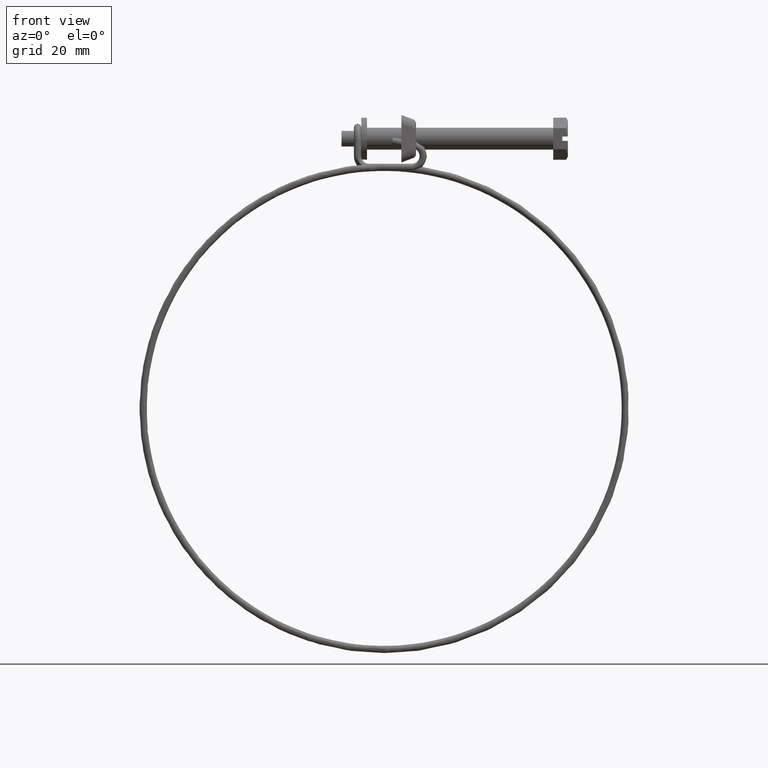
[diagram: clean part render]
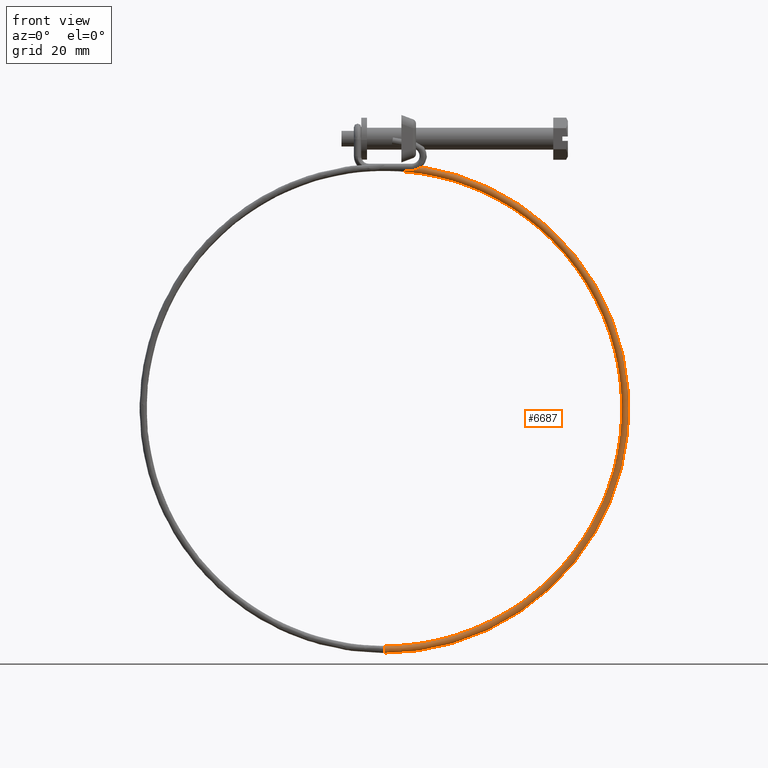
[diagram: same view with one face highlighted and labeled with its STEP entity id]
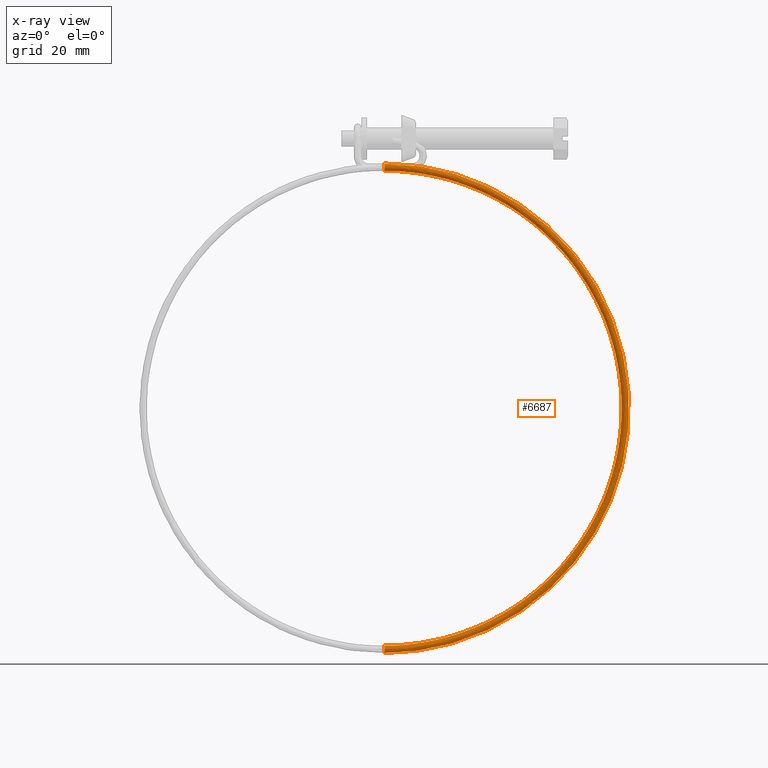
[diagram: x-ray of the same camera — body ghosted, the highlighted face saturated]
A machine part, front view. The second image highlights one B-rep face of the part: STEP entity #6687.
The next image is the same camera in x-ray: the body ghosted, the highlighted face saturated — about 0% of this face is hidden behind the body in this view.
In plain terms, the highlighted face is a freeform B-spline surface patch.
Its self-contained STEP definition (entity closure, byte-faithful):
#4769=CARTESIAN_POINT('',(-46.300000098640510,-3.606097298404869,-8.570067847663424));
#4770=VERTEX_POINT('',#4769);
#4776=CARTESIAN_POINT('',(-46.300000136987592,-4.300002000000000,-8.850000999999850));
#4777=VERTEX_POINT('',#4776);
#4778=CARTESIAN_POINT('',(-46.300000136987592,-4.300002000000000,-8.850000999999850));
#4779=CARTESIAN_POINT('',(-46.300000136987542,-3.896584712736692,-8.850000999999850));
#4780=CARTESIAN_POINT('',(-46.300000098640517,-3.606097298404869,-8.570067847663424));
#4788=(BOUNDED_CURVE()B_SPLINE_CURVE(2,(#4778,#4779,#4780),.UNSPECIFIED.,.F.,.U.)B_SPLINE_CURVE_WITH_KNOTS((3,3),(0.500000000000000,0.622208412578948),.UNSPECIFIED.)CURVE()GEOMETRIC_REPRESENTATION_ITEM()RATIONAL_B_SPLINE_CURVE((1.0,0.856823938694678,0.853626430760792))REPRESENTATION_ITEM(''));
#4789=EDGE_CURVE('',#4777,#4770,#4788,.T.);
#4791=CARTESIAN_POINT('',(-46.300000100542633,-4.979204225746117,-8.583952181306554));
#4792=VERTEX_POINT('',#4791);
#4793=CARTESIAN_POINT('',(-46.300000100542626,-4.979204225746117,-8.583952181306554));
#4794=CARTESIAN_POINT('',(-46.300000136987627,-4.691709813386845,-8.850000999999850));
#4795=CARTESIAN_POINT('',(-46.300000136987592,-4.300002000000000,-8.850000999999850));
#4803=(BOUNDED_CURVE()B_SPLINE_CURVE(2,(#4793,#4794,#4795),.UNSPECIFIED.,.F.,.U.)B_SPLINE_CURVE_WITH_KNOTS((3,3),(0.380843584882108,0.500000000000000),.UNSPECIFIED.)CURVE()GEOMETRIC_REPRESENTATION_ITEM()RATIONAL_B_SPLINE_CURVE((0.853873440723946,0.860399576135395,1.0))REPRESENTATION_ITEM(''));
#4804=EDGE_CURVE('',#4792,#4777,#4803,.T.);
#4858=CARTESIAN_POINT('',(-46.299999863003649,-4.325132099281037,-6.850316810813069));
#4859=VERTEX_POINT('',#4858);
#4860=CARTESIAN_POINT('',(-46.299999863003642,-4.325132099281037,-6.850316810813069));
#4861=CARTESIAN_POINT('',(-46.299999866415391,-5.300001999999999,-6.874823127564024));
#4862=CARTESIAN_POINT('',(-46.300000000001411,-5.300002000000000,-7.850000999999860));
#4863=CARTESIAN_POINT('',(-46.300000059875821,-5.300002000000000,-8.287084258972746));
#4864=CARTESIAN_POINT('',(-46.300000100542626,-4.979204225746117,-8.583952181306554));
#4872=(BOUNDED_CURVE()B_SPLINE_CURVE(2,(#4860,#4861,#4862,#4863,#4864),.UNSPECIFIED.,.F.,.U.)B_SPLINE_CURVE_WITH_KNOTS((3,2,3),(0.004420108901918,0.250000000000000,0.380843584882108),.UNSPECIFIED.)CURVE()GEOMETRIC_REPRESENTATION_ITEM()RATIONAL_B_SPLINE_CURVE((0.989826156163281,0.712285260881703,1.0,0.846707205051153,0.853873440723946))REPRESENTATION_ITEM(''));
#4873=EDGE_CURVE('',#4859,#4792,#4872,.T.);
#4875=CARTESIAN_POINT('',(-46.299999996558732,-3.300317810767480,-7.824870902536533));
#4876=VERTEX_POINT('',#4875);
#4890=CARTESIAN_POINT('',(-46.300000098640517,-3.606097298404869,-8.570067847663424));
#4891=CARTESIAN_POINT('',(-46.300000058233088,-3.300002000000000,-8.275093891580267));
#4892=CARTESIAN_POINT('',(-46.300000000001191,-3.300002000000000,-7.850000999999860));
#4893=CARTESIAN_POINT('',(-46.299999998279681,-3.300002000000000,-7.837433965855511));
#4894=CARTESIAN_POINT('',(-46.299999996558718,-3.300317810767480,-7.824870902536533));
#4902=(BOUNDED_CURVE()B_SPLINE_CURVE(2,(#4890,#4891,#4892,#4893,#4894),.UNSPECIFIED.,.F.,.U.)B_SPLINE_CURVE_WITH_KNOTS((3,2,3),(0.622208412578947,0.750000000000000,0.754420108937332),.UNSPECIFIED.)CURVE()GEOMETRIC_REPRESENTATION_ITEM()RATIONAL_B_SPLINE_CURVE((0.853626430760792,0.850282842491868,1.0,0.994821520263355,0.989826156083235))REPRESENTATION_ITEM(''));
#4903=EDGE_CURVE('',#4770,#4876,#4902,.T.);
#6559=CARTESIAN_POINT('',(-55.663047455886904,-3.300848521342249,-8.470803860619171));
#6560=CARTESIAN_POINT('',(19.269323835673546,-3.300848521342249,2.260367201168245));
#6561=CARTESIAN_POINT('',(19.744938257765494,-3.300848521342250,-73.435022953418567));
#6562=CARTESIAN_POINT('',(20.226283188288470,-3.300848521342251,-150.042439849256680));
#6563=CARTESIAN_POINT('',(-55.616615099380418,-3.300848521342251,-139.235830958341860));
#6564=CARTESIAN_POINT('',(-55.661557568218633,-3.300584331736544,-8.481207274682610));
#6565=CARTESIAN_POINT('',(19.258890167846943,-3.300584331736544,2.248256197828305));
#6566=CARTESIAN_POINT('',(19.734428908162659,-3.300584331736545,-73.435088986478519));
#6567=CARTESIAN_POINT('',(20.215697245046702,-3.300584331736545,-150.030315786488500));
#6568=CARTESIAN_POINT('',(-55.615132600224847,-3.300584331736545,-139.225426488836150));
#6569=CARTESIAN_POINT('',(-55.518334273784788,-3.275187715273363,-9.481290211980319));
#6570=CARTESIAN_POINT('',(18.255898928318462,-3.275187715273362,1.084022253089542));
#6571=CARTESIAN_POINT('',(18.724162359528542,-3.275187715273364,-73.441436761946832));
#6572=CARTESIAN_POINT('',(19.198067729704015,-3.275187715273364,-148.864826435467650));
#6573=CARTESIAN_POINT('',(-55.472619565468584,-3.275187715273364,-138.225242091603830));
#6574=CARTESIAN_POINT('',(-55.514771705056496,-4.274871904556663,-9.506166501917688));
#6575=CARTESIAN_POINT('',(18.230950296611400,-4.274871904556662,1.055062833741289));
#6576=CARTESIAN_POINT('',(18.699032760131772,-4.274871904556663,-73.441594657954369));
#6577=CARTESIAN_POINT('',(19.172754982202406,-4.274871904556662,-148.835835788858620));
#6578=CARTESIAN_POINT('',(-55.469074663900706,-4.274871904556662,-138.200363277928970));
#6579=CARTESIAN_POINT('',(-55.511209136328205,-5.274556093839961,-9.531042791855031));
#6580=CARTESIAN_POINT('',(18.206001664904374,-5.274556093839963,1.026103414393037));
#6581=CARTESIAN_POINT('',(18.673903160734998,-5.274556093839962,-73.441752553961905));
#6582=CARTESIAN_POINT('',(19.147442234700801,-5.274556093839962,-148.806845142249590));
#6583=CARTESIAN_POINT('',(-55.465529762332814,-5.274556093839963,-138.175484464254230));
#6584=CARTESIAN_POINT('',(-55.652929395168570,-5.299686189283299,-8.541455076421373));
#6585=CARTESIAN_POINT('',(19.198467161822958,-5.299686189283300,2.178119478898079));
#6586=CARTESIAN_POINT('',(19.673567617108262,-5.299686189283300,-73.435471394280540));
#6587=CARTESIAN_POINT('',(20.154392388221993,-5.299686189283299,-149.960103438361950));
#6588=CARTESIAN_POINT('',(-55.606547215210298,-5.299686189283301,-139.165172574866290));
#6589=CARTESIAN_POINT('',(-55.794649654008921,-5.324816284726636,-7.551867360987707));
#6590=CARTESIAN_POINT('',(20.190932658741559,-5.324816284726635,3.330135543403133));
#6591=CARTESIAN_POINT('',(20.673232073481529,-5.324816284726636,-73.429190234599190));
#6592=CARTESIAN_POINT('',(21.161342541743174,-5.324816284726638,-151.113361734474300));
#6593=CARTESIAN_POINT('',(-55.747564668087790,-5.324816284726638,-140.154860685478440));
#6594=CARTESIAN_POINT('',(-55.798282235448269,-4.305485990168901,-7.526502194446933));
#6595=CARTESIAN_POINT('',(20.216371588735029,-4.305485990168901,3.359664082286638));
#6596=CARTESIAN_POINT('',(20.698855527598177,-4.305485990168903,-73.429029235570141));
#6597=CARTESIAN_POINT('',(21.187152743248305,-4.305485990168901,-151.142922114306400));
#6598=CARTESIAN_POINT('',(-55.751179235166198,-4.305485990168903,-140.180228425354020));
#6599=CARTESIAN_POINT('',(-55.798351117520504,-4.286157150844381,-7.526021212736565));
#6600=CARTESIAN_POINT('',(20.216853969169577,-4.286157150844381,3.360224011081666));
#6601=CARTESIAN_POINT('',(20.699341407033124,-4.286157150844380,-73.429026182659385));
#6602=CARTESIAN_POINT('',(21.187642163841886,-4.286157150844382,-151.143482646878740));
#6603=CARTESIAN_POINT('',(-55.751247775644821,-4.286157150844383,-140.180709455860670));
#6611=(BOUNDED_SURFACE()B_SPLINE_SURFACE(2,2,((#6559,#6564,#6569,#6574,#6579,#6584,#6589,#6594,#6599),(#6560,#6565,#6570,#6575,#6580,#6585,#6590,#6595,#6600),(#6561,#6566,#6571,#6576,#6581,#6586,#6591,#6596,#6601),(#6562,#6567,#6572,#6577,#6582,#6587,#6592,#6597,#6602),(#6563,#6568,#6573,#6578,#6583,#6588,#6593,#6598,#6603)),.UNSPECIFIED.,.F.,.F.,.U.)B_SPLINE_SURFACE_WITH_KNOTS((3,2,3),(3,1,2,2,1,3),(0.0,121.842531703937400,244.641604907438790),(0.0,0.024960236312372,1.681814485804781,3.338668735297190,4.995522984789599,5.041949136067259),.UNSPECIFIED.)GEOMETRIC_REPRESENTATION_ITEM()RATIONAL_B_SPLINE_SURFACE(((0.999185353665721,0.994815126389936,0.700350304555242,0.990444899114151,0.700350304555242,0.990444899114151,0.700350304555242,0.998573541410810,1.006702183707469),(0.660066533276105,0.657179540630573,0.462654697560047,0.654292547985041,0.462654697560047,0.654292547985041,0.462654697560047,0.659662367229602,0.665032186474163),(1.008824776178248,1.004412388089124,0.707106781186548,1.0,0.707106781186548,1.0,0.707106781186548,1.008207061598206,1.016414123196413),(0.657328558875987,0.654453541556515,0.460735592963536,0.651578524237042,0.460735592963536,0.651578524237042,0.460735592963536,0.656926069321524,0.662273614406006),(1.004552346835052,1.000158645456238,0.704112144424989,0.995764944077423,0.704112144424989,0.995764944077423,0.704112144424989,1.003937248310801,1.012109552544179)))REPRESENTATION_ITEM('')SURFACE());
#6612=ORIENTED_EDGE('',*,*,#4789,.T.);
#6613=ORIENTED_EDGE('',*,*,#4903,.T.);
#6614=CARTESIAN_POINT('',(-46.299999999998718,-3.300325003128281,-139.875130902443090));
#6615=VERTEX_POINT('',#6614);
#6616=CARTESIAN_POINT('',(-46.299999996558725,-3.300317810767480,-7.824870902536533));
#6617=CARTESIAN_POINT('',(19.311579814143407,-3.300317810767480,-7.824870905956245));
#6618=CARTESIAN_POINT('',(19.723826815901809,-3.300321384352561,-73.435155505355340));
#6619=CARTESIAN_POINT('',(20.141286987300020,-3.300325003128280,-139.875130902441750));
#6620=CARTESIAN_POINT('',(-46.299999999998718,-3.300325003128280,-139.875130902443030));
#6628=(BOUNDED_CURVE()B_SPLINE_CURVE(2,(#6616,#6617,#6618,#6619,#6620),.UNSPECIFIED.,.F.,.U.)B_SPLINE_CURVE_WITH_KNOTS((3,2,3),(-3.792515020750557,-2.0,-0.192000658020308),.UNSPECIFIED.)CURVE()GEOMETRIC_REPRESENTATION_ITEM()RATIONAL_B_SPLINE_CURVE((0.934811369253689,0.685815180539215,1.0,0.683101151025638,0.939155212471044))REPRESENTATION_ITEM(''));
#6629=EDGE_CURVE('',#4876,#6615,#6628,.T.);
#6630=ORIENTED_EDGE('',*,*,#6629,.T.);
#6631=CARTESIAN_POINT('',(-46.299999999998832,-4.300002000000002,-138.850000999999910));
#6632=VERTEX_POINT('',#6631);
#6633=CARTESIAN_POINT('',(-46.299999999998832,-4.300002000000002,-138.850000999999910));
#6634=CARTESIAN_POINT('',(-46.299999999998811,-4.038201694071937,-138.850001024100610));
#6635=CARTESIAN_POINT('',(-46.299999999998811,-3.778013123046963,-138.957774154617110));
#6636=CARTESIAN_POINT('',(-46.299999999998761,-3.407770248270867,-139.328014468498910));
#6637=CARTESIAN_POINT('',(-46.299999999998739,-3.299995838206623,-139.588201773946710));
#6638=CARTESIAN_POINT('',(-46.299999999998718,-3.299994866560924,-139.858380212582090));
#6639=CARTESIAN_POINT('',(-46.299999999998718,-3.300105234542940,-139.866757587316410));
#6640=CARTESIAN_POINT('',(-46.299999999998718,-3.300325003128281,-139.875130902443090));
#6641=B_SPLINE_CURVE_WITH_KNOTS('',3,(#6633,#6634,#6635,#6636,#6637,#6638,#6639,#6640),.UNSPECIFIED.,.F.,.U.,(4,2,2,4),(0.500000000000000,0.625000000000000,0.750000000000000,0.754000689899060),.UNSPECIFIED.);
#6642=EDGE_CURVE('',#6632,#6615,#6641,.T.);
#6643=ORIENTED_EDGE('',*,*,#6642,.F.);
#6644=CARTESIAN_POINT('',(-46.299999999998761,-5.028949982883797,-140.534537745304790));
#6645=VERTEX_POINT('',#6644);
#6646=CARTESIAN_POINT('',(-46.299999999998818,-5.028949982883710,-140.534537745304790));
#6647=CARTESIAN_POINT('',(-46.299999999998818,-5.200678314366739,-140.351170097699310));
#6648=CARTESIAN_POINT('',(-46.299999999998811,-5.300001999999999,-140.101328412287190));
#6649=CARTESIAN_POINT('',(-46.299999999998832,-5.300002000000001,-139.588201612200810));
#6650=CARTESIAN_POINT('',(-46.299999999998832,-5.192228903609815,-139.328014341236700));
#6651=CARTESIAN_POINT('',(-46.299999999998832,-4.821988658763284,-138.957774096390100));
#6652=CARTESIAN_POINT('',(-46.299999999998839,-4.561801387799152,-138.850000999999910));
#6653=CARTESIAN_POINT('',(-46.299999999998832,-4.300002000000002,-138.850000999999910));
#6654=B_SPLINE_CURVE_WITH_KNOTS('',3,(#6646,#6647,#6648,#6649,#6650,#6651,#6652,#6653),.UNSPECIFIED.,.F.,.U.,(4,2,2,4),(0.129999999999962,0.250000000000000,0.375000000000000,0.500000000000000),.UNSPECIFIED.);
#6655=EDGE_CURVE('',#6645,#6632,#6654,.T.);
#6656=ORIENTED_EDGE('',*,*,#6655,.F.);
#6657=CARTESIAN_POINT('',(-46.300000000306440,-4.312567047721670,-140.849843094641610));
#6658=VERTEX_POINT('',#6657);
#6659=CARTESIAN_POINT('',(-46.300000000306440,-4.312567047721670,-140.849843094641610));
#6660=CARTESIAN_POINT('',(-46.300000000213252,-4.570108268787622,-140.846479671085800));
#6661=CARTESIAN_POINT('',(-46.300000000104582,-4.824950524667332,-140.739239819435510));
#6662=CARTESIAN_POINT('',(-46.300000000006357,-5.014513561660081,-140.549701118748490));
#6663=CARTESIAN_POINT('',(-46.300000000002548,-5.021794623570337,-140.542177138479190));
#6664=CARTESIAN_POINT('',(-46.299999999998761,-5.028949982883797,-140.534537745304790));
#6665=B_SPLINE_CURVE_WITH_KNOTS('',3,(#6659,#6660,#6661,#6662,#6663,#6664),.UNSPECIFIED.,.F.,.U.,(4,2,4),(0.002000191899729,0.125000000000000,0.129999999999962),.UNSPECIFIED.);
#6666=EDGE_CURVE('',#6658,#6645,#6665,.T.);
#6667=ORIENTED_EDGE('',*,*,#6666,.F.);
#6668=CARTESIAN_POINT('',(-46.299999863003649,-4.325132099281037,-6.850316810813069));
#6669=CARTESIAN_POINT('',(20.280029761461979,-4.325132099274668,-6.850316947005696));
#6670=CARTESIAN_POINT('',(20.698361672850819,-4.318889047521734,-73.429110795248249));
#6671=CARTESIAN_POINT('',(21.121983702929317,-4.312567047728122,-140.849843094949880));
#6672=CARTESIAN_POINT('',(-46.300000000306447,-4.312567047721670,-140.849843094641590));
#6680=(BOUNDED_CURVE()B_SPLINE_CURVE(2,(#6668,#6669,#6670,#6671,#6672),.UNSPECIFIED.,.F.,.U.)B_SPLINE_CURVE_WITH_KNOTS((3,2,3),(-3.792515018299922,-2.0,-0.192000658014635),.UNSPECIFIED.)CURVE()GEOMETRIC_REPRESENTATION_ITEM()RATIONAL_B_SPLINE_CURVE((0.934811368572859,0.685815180968753,1.0,0.683101151024643,0.939155212472651))REPRESENTATION_ITEM(''));
#6681=EDGE_CURVE('',#4859,#6658,#6680,.T.);
#6682=ORIENTED_EDGE('',*,*,#6681,.F.);
#6683=ORIENTED_EDGE('',*,*,#4873,.T.);
#6684=ORIENTED_EDGE('',*,*,#4804,.T.);
#6685=EDGE_LOOP('',(#6612,#6613,#6630,#6643,#6656,#6667,#6682,#6683,#6684));
#6686=FACE_OUTER_BOUND('',#6685,.T.);
#6687=ADVANCED_FACE('',(#6686),#6611,.T.);